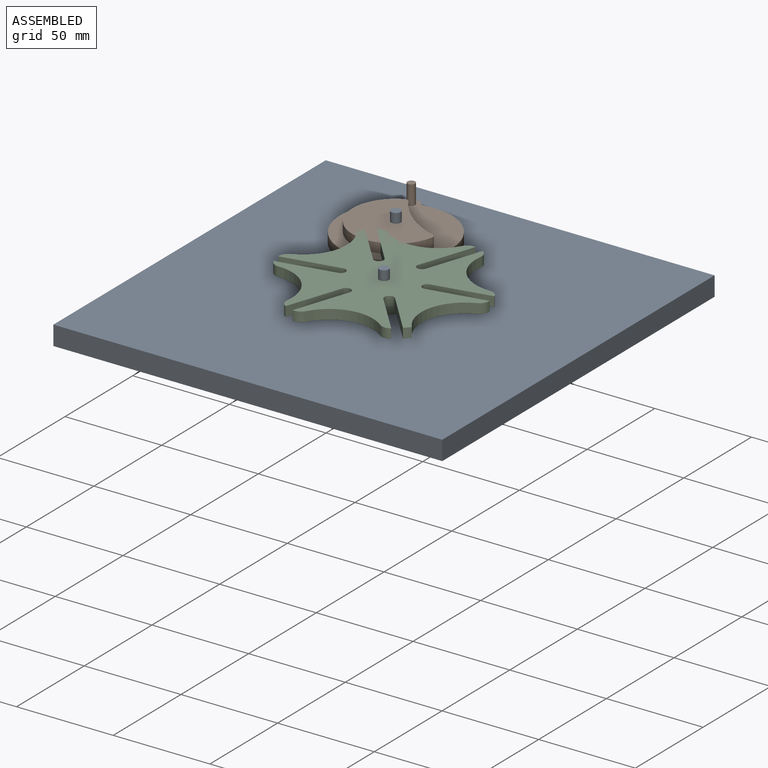
[diagram: assembled view]
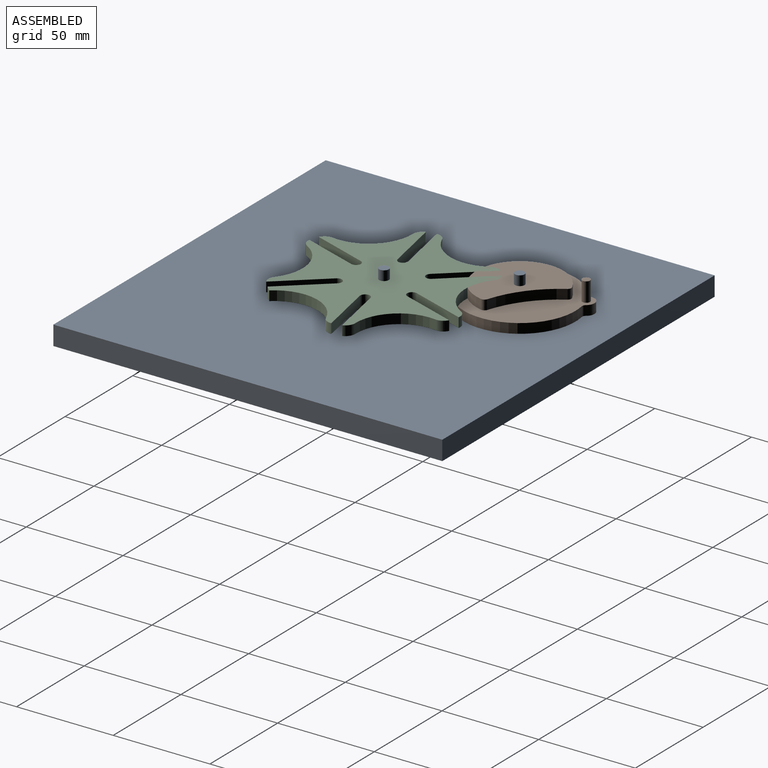
[diagram: assembled view, second angle]
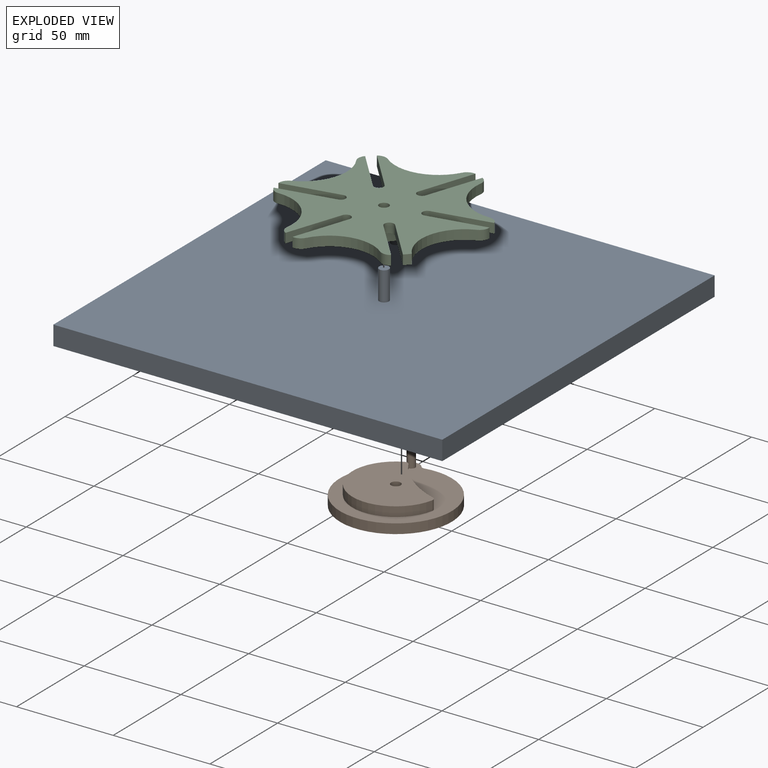
[diagram: exploded view]
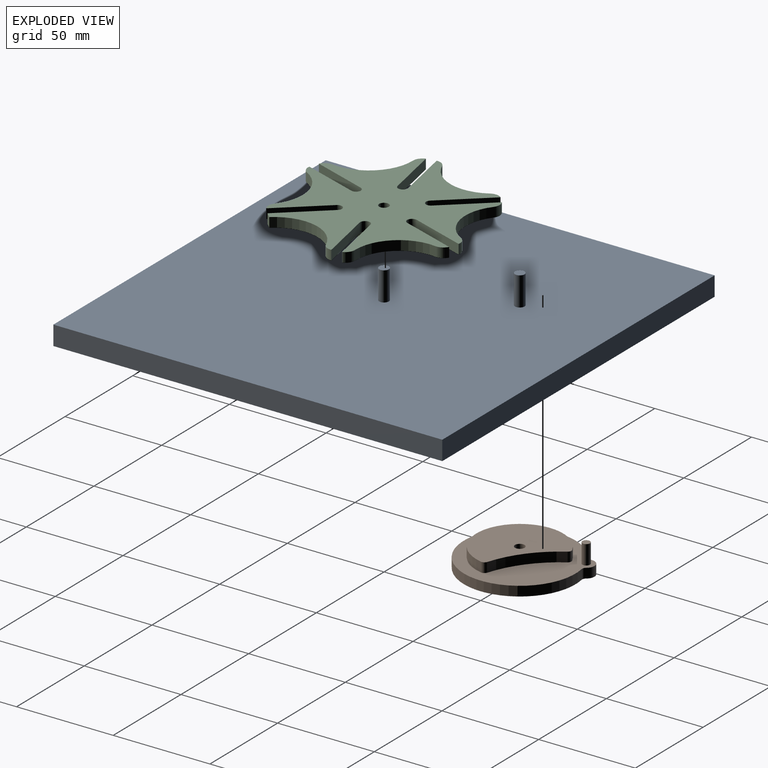
[diagram: exploded view, second angle]
ASSEMBLY  parts=3 mates=2
PART A: 10 faces, bbox 201.1x201.1x25 mm
  f0: plane 201.13x10mm, normal (0,-1,0), area 2011.3mm2, adj f1,f3,f4,f5
  f1: plane 201.13x10mm, normal (1,0,0), area 2011.3mm2, adj f0,f2,f4,f5
  f2: plane 201.13x10mm, normal (0,1,0), area 2011.3mm2, adj f1,f3,f4,f5
  f3: plane 201.13x10mm, normal (-1,0,0), area 2011.3mm2, adj f0,f2,f4,f5
  f4: plane 201.13x201.13mm, normal (0,0,-1), area 40455mm2, adj f0,f1,f2,f3
  f5: plane 201.13x201.13mm, normal (0,0,1), area 40415.8mm2, adj f0,f1,f2,f3,f6,f8
  f6: cylinder r=2.5mm len=15mm, axis (0,0,-1), area 235.6mm2, adj f5,f7
  f7: plane 5x5mm, normal (0,0,1), area 19.6mm2, adj f6
  f8: cylinder r=2.5mm len=15mm, axis (0,0,-1), area 235.6mm2, adj f5,f9
  f9: plane 5x5mm, normal (0,0,1), area 19.6mm2, adj f8
PART B: 14 faces, bbox 62x57.7x15 mm
  f0: cylinder r=28.87mm len=57.74mm, axis (0,0,-1), area 849.1mm2, adj f1,f2,f10,f11
  f1: plane 62.03x57.74mm, normal (0,0,1), area 1444.5mm2, adj f0,f4,f5,f6,f7,f10,f11,f12
  f2: plane 62.03x57.74mm, normal (0,0,-1), area 2629.1mm2, adj f0,f6,f9,f10,f11
  f3: plane 44.96x41.56mm, normal (0,0,1), area 1172mm2, adj f4,f5,f9,f12,f13
  f4: cylinder r=22.5mm len=44.95mm, axis (0,0,1), area 456.8mm2, adj f1,f3,f12,f13
  f5: cylinder r=50mm len=30.6mm, axis (0,0,1), area 180.6mm2, adj f1,f3,f12,f13
  f6: cylinder r=4.3mm len=8.39mm, axis (0,0,-1), area 58mm2, adj f1,f2,f10,f11
  f7: cylinder r=2mm len=10mm, axis (0,0,-1), area 125.7mm2, adj f1,f8
  f8: plane 4x4mm, normal (0,0,1), area 12.6mm2, adj f7
  f9: cylinder r=2.5mm len=10mm, axis (0,0,1), area 157.1mm2, adj f2,f3
  f10: cylinder r=2mm len=5mm, axis (0,0,1), area 11.5mm2, adj f0,f1,f2,f6
  f11: cylinder r=2mm len=5mm, axis (0,0,1), area 11.5mm2, adj f0,f1,f2,f6
  f12: cylinder r=2mm len=5mm, axis (0,0,-1), area 14.7mm2, adj f1,f3,f4,f5
  f13: cylinder r=2mm len=5mm, axis (0,0,-1), area 14.7mm2, adj f1,f3,f4,f5
PART C: 41 faces, bbox 89.7x99.9x10 mm
  f0: plane 99.88x89.74mm, normal (0,0,-1), area 3768.5mm2, adj f1,f2,f3,f4,f5,f6,f7,f8
  f1: cylinder r=22.5mm len=29.63mm, axis (0,0,-1), area 194.3mm2, adj f0,f27,f30,f40
  f2: plane 29.94x5mm, normal (-1,0,0), area 149.7mm2, adj f0,f3,f27,f30
  f3: cylinder r=2.5mm len=5mm, axis (0,0,-1), area 39.3mm2, adj f0,f2,f4,f27
  f4: plane 29.94x5mm, normal (1,0,0), area 149.7mm2, adj f0,f3,f27,f31
  f5: cylinder r=22.5mm len=29.63mm, axis (0,0,-1), area 194.3mm2, adj f0,f27,f31,f32
  f6: plane 25.93x14.97mm, normal (-0.5,-0.87,0), area 149.7mm2, adj f0,f7,f27,f32
  f7: cylinder r=2.5mm len=5mm, axis (0,0,-1), area 39.3mm2, adj f0,f6,f8,f27
  f8: plane 25.93x14.97mm, normal (0.5,0.87,0), area 149.7mm2, adj f0,f7,f27,f33
  f9: cylinder r=22.5mm len=34.21mm, axis (0,0,-1), area 194.3mm2, adj f0,f27,f33,f34
  f10: plane 25.93x14.97mm, normal (0.5,-0.87,0), area 149.7mm2, adj f0,f11,f27,f34
  f11: cylinder r=2.5mm len=5mm, axis (0,0,-1), area 39.3mm2, adj f0,f10,f12,f27
  f12: plane 25.93x14.97mm, normal (-0.5,0.87,0), area 149.7mm2, adj f0,f11,f13,f27
  f13: cylinder r=50mm len=5mm, axis (0,0,-1), area 19.4mm2, adj f0,f12,f14,f27
  f14: cylinder r=22.5mm len=33.02mm, axis (0,0,-1), area 212.9mm2, adj f0,f13,f27,f35
  f15: plane 29.94x5mm, normal (1,0,0), area 149.7mm2, adj f0,f16,f27,f35
  f16: cylinder r=2.5mm len=5mm, axis (0,0,-1), area 39.3mm2, adj f0,f15,f17,f27
  f17: plane 29.94x5mm, normal (-1,0,0), area 149.7mm2, adj f0,f16,f27,f36
  f18: cylinder r=22.5mm len=29.63mm, axis (0,0,-1), area 194.3mm2, adj f0,f27,f36,f37
  f19: plane 25.93x14.97mm, normal (0.5,0.87,0), area 149.7mm2, adj f0,f20,f27,f37
  f20: cylinder r=2.5mm len=5mm, axis (0,0,-1), area 39.3mm2, adj f0,f19,f21,f27
  f21: plane 25.93x14.97mm, normal (-0.5,-0.87,0), area 149.7mm2, adj f0,f20,f27,f38
  f22: cylinder r=22.5mm len=34.21mm, axis (0,0,-1), area 194.3mm2, adj f0,f27,f38,f39
  f23: plane 25.93x14.97mm, normal (-0.5,0.87,0), area 149.7mm2, adj f0,f24,f27,f39
  f24: cylinder r=2.5mm len=5mm, axis (0,0,-1), area 39.3mm2, adj f0,f23,f25,f27
  f25: plane 25.93x14.97mm, normal (0.5,-0.87,0), area 149.7mm2, adj f0,f24,f27,f40
  f26: cylinder r=2.5mm len=10mm, axis (0,0,-1), area 157.1mm2, adj f27,f28
  f27: plane 99.88x89.74mm, normal (0,0,1), area 4455.8mm2, adj f1,f2,f3,f4,f5,f6,f7,f8
  f28: plane 30x30mm, normal (0,0,-1), area 687.2mm2, adj f26,f29
  f29: cylinder r=15mm len=30mm, axis (0,0,-1), area 471.2mm2, adj f0,f28
  f30: cylinder r=5mm len=5mm, axis (0,0,-1), area 31.3mm2, adj f0,f1,f2,f27
  f31: cylinder r=5mm len=5mm, axis (0,0,-1), area 31.3mm2, adj f0,f4,f5,f27
  f32: cylinder r=5mm len=5.62mm, axis (0,0,-1), area 31.3mm2, adj f0,f5,f6,f27
  f33: cylinder r=5mm len=5.7mm, axis (0,0,-1), area 31.3mm2, adj f0,f8,f9,f27
  f34: cylinder r=5mm len=5.7mm, axis (0,0,-1), area 31.3mm2, adj f0,f9,f10,f27
  f35: cylinder r=5mm len=5mm, axis (0,0,-1), area 31.3mm2, adj f0,f14,f15,f27
  f36: cylinder r=5mm len=5mm, axis (0,0,-1), area 31.3mm2, adj f0,f17,f18,f27
  f37: cylinder r=5mm len=5.62mm, axis (0,0,-1), area 31.3mm2, adj f0,f18,f19,f27
  f38: cylinder r=5mm len=5.7mm, axis (0,0,-1), area 31.3mm2, adj f0,f21,f22,f27
  f39: cylinder r=5mm len=5.7mm, axis (0,0,-1), area 31.3mm2, adj f0,f22,f23,f27
  f40: cylinder r=5mm len=5.62mm, axis (0,0,-1), area 31.3mm2, adj f0,f1,f25,f27
PLACE A at identity fixed
PLACE B rot(axis=(0,0,1),111.9deg) t=(6.73,95.46,0)mm
PLACE C rot(axis=(0,0,1),101.3deg) t=(0,0,0)mm
MATE revolute C.f29 <-> A.f8  axis (0,0,-1) through (0,0,0)mm
MATE revolute A.f6 <-> B.f0  axis (0,0,-1) through (-28.87,50,0)mm
